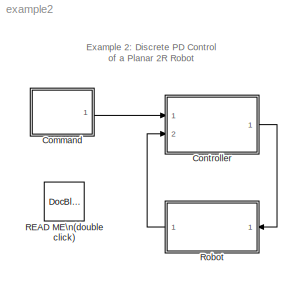
MODEL example2
KIND model
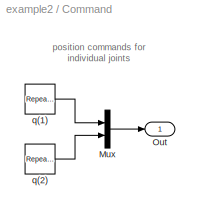
BLOCK [SubSystem] Command
  FunctionWithSeparateData = off
  MaskHideContents = off
  MinAlgLoopOccurrences = off
  Opaque = off
  Ports = [0, 1]
  PropExecContextOutsideSubsystem = off
  RTWSystemCode = Auto
  RequestExecContextInheritance = off
BLOCK [Mux] Command/Mux
  DisplayOption = bar
  Inputs = 2
  Ports = [2, 1]
BLOCK [Outport] Command/Out
  IconDisplay = Port number
  OutDataType = sfix(16)
  OutScaling = 2^0
BLOCK [Reference] Command/q(1)  REF=simulink/Sources/Repeating\nSequence
  FunctionWithSeparateData = off
  Ports = [0, 1]
  RTWMemSecDataConstants = Inherit from model
  RTWMemSecDataInternal = Inherit from model
  RTWMemSecDataParameters = Inherit from model
  RTWMemSecFuncExecute = Inherit from model
  RTWMemSecFuncInitTerm = Inherit from model
  ShowPortLabels = FromPortIcon
  SourceBlock = simulink/Sources/Repeating\nSequence
  SourceType = Repeating table
  SystemSampleTime = -1
  rep_seq_t = [0 1 2 3 4]
  rep_seq_y = [0 1 1 0 0]
BLOCK [Reference] Command/q(2)  REF=simulink/Sources/Repeating\nSequence
  FunctionWithSeparateData = off
  Ports = [0, 1]
  RTWMemSecDataConstants = Inherit from model
  RTWMemSecDataInternal = Inherit from model
  RTWMemSecDataParameters = Inherit from model
  RTWMemSecFuncExecute = Inherit from model
  RTWMemSecFuncInitTerm = Inherit from model
  ShowPortLabels = FromPortIcon
  SourceBlock = simulink/Sources/Repeating\nSequence
  SourceType = Repeating table
  SystemSampleTime = -1
  rep_seq_t = [0 1 2 3 4]
  rep_seq_y = [0 2 2 0 0]
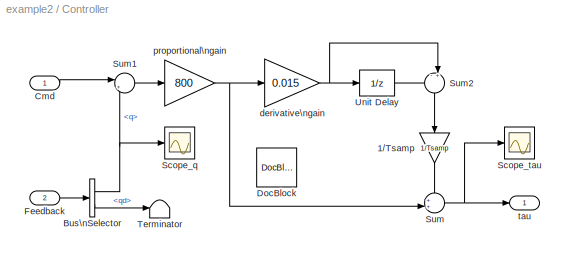
BLOCK [SubSystem] Controller
  FunctionWithSeparateData = off
  MaskHideContents = off
  MinAlgLoopOccurrences = off
  Opaque = off
  Ports = [2, 1]
  PropExecContextOutsideSubsystem = off
  RTWSystemCode = Auto
  RequestExecContextInheritance = off
BLOCK [Gain] Controller/1//Tsamp
  Gain = 1/Tsamp
  OutDataType = sfix(16)
  OutDataTypeMode = Inherit via internal rule
  OutDataTypeStr = Inherit: Inherit via internal rule
  OutScaling = 2^0
  ParamDataTypeStr = Inherit: Inherit via internal rule
  ParameterDataType = sfix(16)
  ParameterDataTypeMode = Inherit via internal rule
  ParameterScaling = 2^0
  SampleTime = Tsamp
  SaturateOnIntegerOverflow = off
BLOCK [BusSelector] Controller/Bus\nSelector
  OutputSignals = q,qd
  Ports = [1, 2]
BLOCK [Inport] Controller/Cmd
  IconDisplay = Port number
  OutDataType = sfix(16)
  OutScaling = 2^0
BLOCK [Reference] Controller/DocBlock  REF=simulink/Model-Wide\nUtilities/DocBlock
  DocumentType = Text
  FunctionWithSeparateData = off
  Ports = []
  RTWMemSecDataConstants = Inherit from model
  RTWMemSecDataInternal = Inherit from model
  RTWMemSecDataParameters = Inherit from model
  RTWMemSecFuncExecute = Inherit from model
  RTWMemSecFuncInitTerm = Inherit from model
  ShowPortLabels = FromPortIcon
  SourceBlock = simulink/Model-Wide\nUtilities/DocBlock
  SourceType = DocBlock
  SystemSampleTime = -1
  UserData = DataTag1
  UserDataPersistent = on
BLOCK [Inport] Controller/Feedback
  IconDisplay = Port number
  OutDataType = sfix(16)
  OutScaling = 2^0
  Port = 2
BLOCK [Scope] Controller/Scope_q
  DataFormat = StructureWithTime
  Floating = off
  NumInputPorts = 1
  Ports = [1]
  SampleTime = 0
  YMax = 2.2
  YMin = -0.2
BLOCK [Scope] Controller/Scope_tau
  DataFormat = StructureWithTime
  Floating = off
  NumInputPorts = 1
  Ports = [1]
  SampleTime = 0
  SaveName = ScopeData1
  YMax = 80
  YMin = -60
BLOCK [Sum] Controller/Sum
  IconShape = round
  InputSameDT = off
  Inputs = ++|
  OutDataType = sfix(16)
  OutDataTypeMode = Inherit via internal rule
  OutDataTypeStr = Inherit: Inherit via internal rule
  OutScaling = 2^0
  Ports = [2, 1]
  SaturateOnIntegerOverflow = off
BLOCK [Sum] Controller/Sum1
  IconShape = round
  InputSameDT = off
  Inputs = |+-
  OutDataType = sfix(16)
  OutDataTypeMode = Inherit via internal rule
  OutDataTypeStr = Inherit: Inherit via internal rule
  OutScaling = 2^0
  Ports = [2, 1]
  SaturateOnIntegerOverflow = off
BLOCK [Sum] Controller/Sum2
  IconShape = round
  InputSameDT = off
  Inputs = -+|
  OutDataType = sfix(16)
  OutDataTypeMode = Inherit via internal rule
  OutDataTypeStr = Inherit: Inherit via internal rule
  OutScaling = 2^0
  Ports = [2, 1]
  SaturateOnIntegerOverflow = off
BLOCK [Terminator] Controller/Terminator
BLOCK [UnitDelay] Controller/Unit Delay
  SampleTime = Tsamp
BLOCK [Gain] Controller/derivative\ngain
  Gain = 0.015
  OutDataType = sfix(16)
  OutDataTypeMode = Inherit via internal rule
  OutDataTypeStr = Inherit: Inherit via internal rule
  OutScaling = 2^0
  ParamDataTypeStr = Inherit: Inherit via internal rule
  ParameterDataType = sfix(16)
  ParameterDataTypeMode = Inherit via internal rule
  ParameterScaling = 2^0
  SampleTime = Tsamp
  SaturateOnIntegerOverflow = off
BLOCK [Gain] Controller/proportional\ngain
  Gain = 800
  OutDataType = sfix(16)
  OutDataTypeMode = Inherit via internal rule
  OutDataTypeStr = Inherit: Inherit via internal rule
  OutScaling = 2^0
  ParamDataTypeStr = Inherit: Inherit via internal rule
  ParameterDataType = sfix(16)
  ParameterDataTypeMode = Inherit via internal rule
  ParameterScaling = 2^0
  SampleTime = Tsamp
  SaturateOnIntegerOverflow = off
BLOCK [Outport] Controller/tau
  IconDisplay = Port number
  OutDataType = sfix(16)
  OutScaling = 2^0
BLOCK [Reference] READ ME\n(double click)  REF=simulink/Model-Wide\nUtilities/DocBlock
  DocumentType = Text
  FunctionWithSeparateData = off
  Ports = []
  RTWMemSecDataConstants = Inherit from model
  RTWMemSecDataInternal = Inherit from model
  RTWMemSecDataParameters = Inherit from model
  RTWMemSecFuncExecute = Inherit from model
  RTWMemSecFuncInitTerm = Inherit from model
  ShowPortLabels = FromPortIcon
  SourceBlock = simulink/Model-Wide\nUtilities/DocBlock
  SourceType = DocBlock
  SystemSampleTime = -1
  UserData = DataTag2
  UserDataPersistent = on
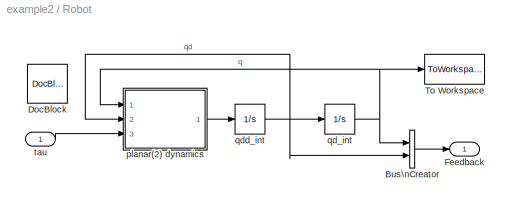
BLOCK [SubSystem] Robot
  FunctionWithSeparateData = off
  MaskHideContents = off
  MinAlgLoopOccurrences = off
  Opaque = off
  Ports = [1, 1]
  PropExecContextOutsideSubsystem = off
  RTWSystemCode = Auto
  RequestExecContextInheritance = off
BLOCK [BusCreator] Robot/Bus\nCreator
  DisplayOption = bar
  Inputs = 2
  Ports = [2, 1]
BLOCK [Reference] Robot/DocBlock  REF=simulink/Model-Wide\nUtilities/DocBlock
  DocumentType = Text
  FunctionWithSeparateData = off
  Ports = []
  RTWMemSecDataConstants = Inherit from model
  RTWMemSecDataInternal = Inherit from model
  RTWMemSecDataParameters = Inherit from model
  RTWMemSecFuncExecute = Inherit from model
  RTWMemSecFuncInitTerm = Inherit from model
  ShowPortLabels = FromPortIcon
  SourceBlock = simulink/Model-Wide\nUtilities/DocBlock
  SourceType = DocBlock
  SystemSampleTime = -1
  UserData = DataTag3
  UserDataPersistent = on
BLOCK [Outport] Robot/Feedback
  IconDisplay = Port number
  OutDataType = sfix(16)
  OutScaling = 2^0
BLOCK [ToWorkspace] Robot/To Workspace
  MaxDataPoints = inf
  SampleTime = -1
  SaveFormat = Array
  VariableName = qout
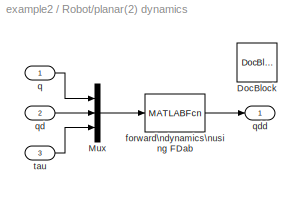
BLOCK [SubSystem] Robot/planar(2) dynamics
  FunctionWithSeparateData = off
  MaskHideContents = off
  MinAlgLoopOccurrences = off
  Opaque = off
  Ports = [3, 1]
  PropExecContextOutsideSubsystem = off
  RTWSystemCode = Auto
  RequestExecContextInheritance = off
BLOCK [Reference] Robot/planar(2) dynamics/DocBlock  REF=simulink/Model-Wide\nUtilities/DocBlock
  DocumentType = Text
  FunctionWithSeparateData = off
  Ports = []
  RTWMemSecDataConstants = Inherit from model
  RTWMemSecDataInternal = Inherit from model
  RTWMemSecDataParameters = Inherit from model
  RTWMemSecFuncExecute = Inherit from model
  RTWMemSecFuncInitTerm = Inherit from model
  ShowPortLabels = FromPortIcon
  SourceBlock = simulink/Model-Wide\nUtilities/DocBlock
  SourceType = DocBlock
  SystemSampleTime = -1
  UserData = DataTag4
  UserDataPersistent = on
BLOCK [Mux] Robot/planar(2) dynamics/Mux
  DisplayOption = bar
  Inputs = 3
  Ports = [3, 1]
BLOCK [MATLABFcn] Robot/planar(2) dynamics/forward\ndynamics\nusing FDab
  MATLABFcn = FDab( planar(2), u(1:2), u(3:4), u(5:6) )
  Output1D = off
  OutputDimensions = [2 1]
  OutputSignalType = real
  Ports = [1, 1]
BLOCK [Inport] Robot/planar(2) dynamics/q
  IconDisplay = Port number
  OutDataType = sfix(16)
  OutScaling = 2^0
BLOCK [Inport] Robot/planar(2) dynamics/qd
  IconDisplay = Port number
  OutDataType = sfix(16)
  OutScaling = 2^0
  Port = 2
BLOCK [Outport] Robot/planar(2) dynamics/qdd
  IconDisplay = Port number
  OutDataType = sfix(16)
  OutScaling = 2^0
BLOCK [Inport] Robot/planar(2) dynamics/tau
  IconDisplay = Port number
  OutDataType = sfix(16)
  OutScaling = 2^0
  Port = 3
BLOCK [Integrator] Robot/qd_int
  Ports = [1, 1]
BLOCK [Integrator] Robot/qdd_int
  Ports = [1, 1]
BLOCK [Inport] Robot/tau
  IconDisplay = Port number
  OutDataType = sfix(16)
  OutScaling = 2^0
ANNOTATION (root): Example 2: Discrete PD Control\nof a Planar 2R Robot
ANNOTATION Command: position commands for\nindividual joints
LINE Command/Mux:1 -> Command/Out:1
LINE Command/q(1):1 -> Command/Mux:1
LINE Command/q(2):1 -> Command/Mux:2
LINE Command:1 -> Controller:1
LINE Controller/1//Tsamp:1 -> Controller/Sum:1
NET Controller/Bus\nSelector:1 -> Controller/Scope_q:1, Controller/Sum1:2
LINE Controller/Bus\nSelector:2 -> Controller/Terminator:1
LINE Controller/Cmd:1 -> Controller/Sum1:1
LINE Controller/Feedback:1 -> Controller/Bus\nSelector:1
LINE Controller/Sum1:1 -> Controller/proportional\ngain:1
LINE Controller/Sum2:1 -> Controller/1//Tsamp:1
NET Controller/Sum:1 -> Controller/Scope_tau:1, Controller/tau:1
LINE Controller/Unit Delay:1 -> Controller/Sum2:1
NET Controller/derivative\ngain:1 -> Controller/Sum2:2, Controller/Unit Delay:1
NET Controller/proportional\ngain:1 -> Controller/Sum:2, Controller/derivative\ngain:1
LINE Controller:1 -> Robot:1
LINE Robot/Bus\nCreator:1 -> Robot/Feedback:1
LINE Robot/planar(2) dynamics/Mux:1 -> Robot/planar(2) dynamics/forward\ndynamics\nusing FDab:1
LINE Robot/planar(2) dynamics/forward\ndynamics\nusing FDab:1 -> Robot/planar(2) dynamics/qdd:1
LINE Robot/planar(2) dynamics/q:1 -> Robot/planar(2) dynamics/Mux:1
LINE Robot/planar(2) dynamics/qd:1 -> Robot/planar(2) dynamics/Mux:2
LINE Robot/planar(2) dynamics/tau:1 -> Robot/planar(2) dynamics/Mux:3
LINE Robot/planar(2) dynamics:1 -> Robot/qdd_int:1
NET Robot/qd_int:1 -> Robot/Bus\nCreator:1, Robot/To Workspace:1, Robot/planar(2) dynamics:1
NET Robot/qdd_int:1 -> Robot/Bus\nCreator:2, Robot/planar(2) dynamics:2, Robot/qd_int:1
LINE Robot/tau:1 -> Robot/planar(2) dynamics:3
LINE Robot:1 -> Controller:2
note: NET lines group one-source signal fan-out (src -> all destinations, sorted); 1:1 wires keep LINE
